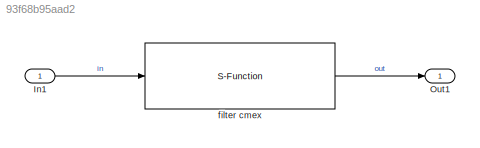
MODEL slx_93f68b95aad2
KIND model
BLOCK [Inport] In1
  IconDisplay = Port number
BLOCK [Outport] Out1
  IconDisplay = Port number
BLOCK [S-Function] filter cmex
  EnableBusSupport = off
  FunctionName = sfun_c_filter
  Parameters = g_coef
  Ports = [1, 1]
LINE In1:1 -> filter cmex:1
LINE filter cmex:1 -> Out1:1
